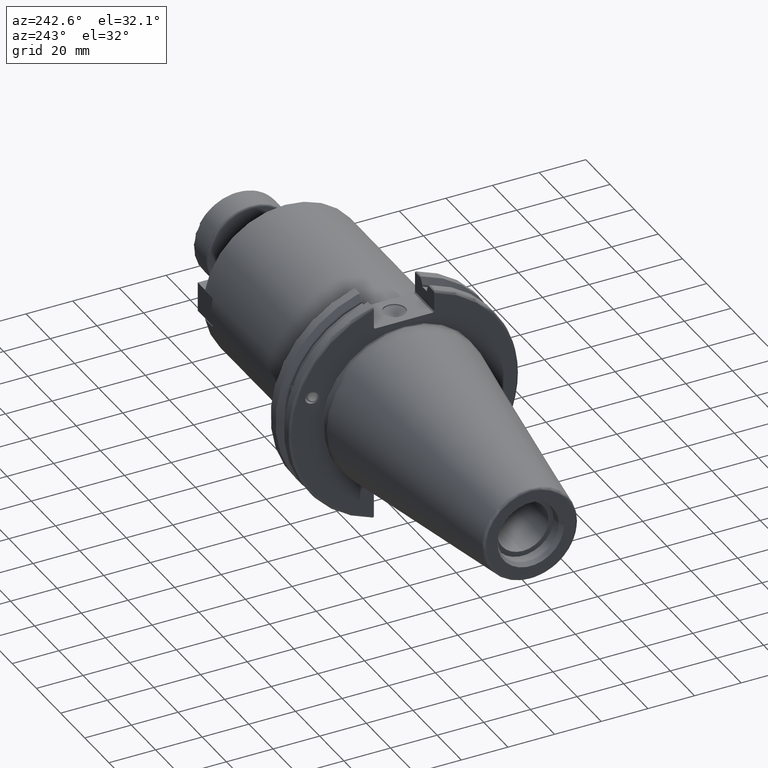
[diagram: clean part render]
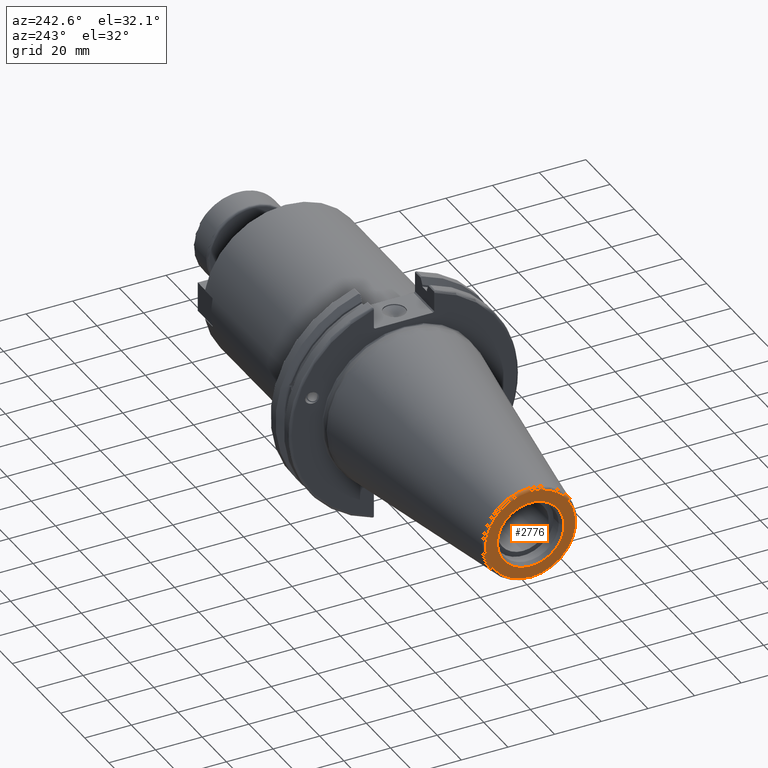
[diagram: same view with one face highlighted and labeled with its STEP entity id]
A machine part, auxiliary view. The second image highlights one B-rep face of the part: STEP entity #2776.
In plain terms, the highlighted planar face has unit normal (-1, 0, 0).
Its self-contained STEP definition (entity closure, byte-faithful):
#591=FACE_BOUND('',#953,.T.);
#663=CIRCLE('',#3136,19.2435889303637);
#664=CIRCLE('',#3138,14.2875);
#794=FACE_OUTER_BOUND('',#952,.T.);
#952=EDGE_LOOP('',(#2297));
#953=EDGE_LOOP('',(#2298));
#1524=VERTEX_POINT('',#5042);
#1525=VERTEX_POINT('',#5046);
#1811=EDGE_CURVE('',#1524,#1524,#663,.T.);
#1812=EDGE_CURVE('',#1525,#1525,#664,.T.);
#2297=ORIENTED_EDGE('',*,*,#1811,.F.);
#2298=ORIENTED_EDGE('',*,*,#1812,.T.);
#2667=PLANE('',#3137);
#2776=ADVANCED_FACE('',(#794,#591),#2667,.T.);
#3136=AXIS2_PLACEMENT_3D('',#5044,#3683,#3684);
#3137=AXIS2_PLACEMENT_3D('',#5045,#3685,#3686);
#3138=AXIS2_PLACEMENT_3D('',#5047,#3687,#3688);
#3683=DIRECTION('center_axis',(1.,0.,0.));
#3684=DIRECTION('ref_axis',(0.,-1.,1.83697019872103E-16));
#3685=DIRECTION('center_axis',(-1.,0.,0.));
#3686=DIRECTION('ref_axis',(0.,0.,1.));
#3687=DIRECTION('center_axis',(1.,0.,0.));
#3688=DIRECTION('ref_axis',(0.,0.,-1.));
#5042=CARTESIAN_POINT('',(-101.6,-2.35665995876774E-15,19.2435889303637));
#5044=CARTESIAN_POINT('Origin',(-101.6,0.,0.));
#5045=CARTESIAN_POINT('Origin',(-101.6,20.1083333333333,0.));
#5046=CARTESIAN_POINT('',(-101.6,-14.2875,-1.74971411428178E-15));
#5047=CARTESIAN_POINT('Origin',(-101.6,0.,0.));